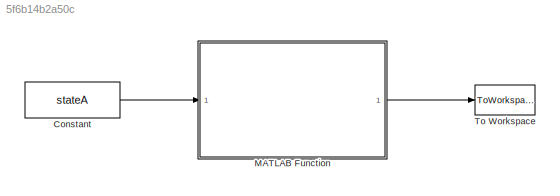
MODEL slx_5f6b14b2a50c
KIND model
BLOCK [Constant] Constant
  OutDataTypeStr = Bus: stateAbus
  Value = stateA
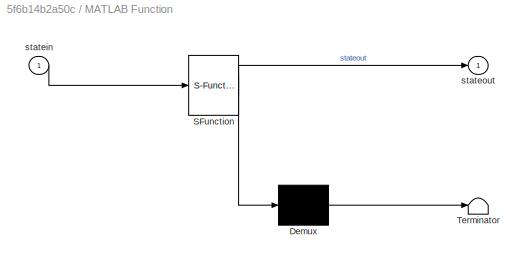
BLOCK [SubSystem] MATLAB Function
  ErrorFcn = Stateflow.Translate.translate
  PermitHierarchicalResolution = ExplicitOnly
  Ports = [1, 1]
  RequestExecContextInheritance = off
  SFBlockType = MATLAB Function
  TreatAsAtomicUnit = on
BLOCK [Demux] MATLAB Function/ Demux 
  Outputs = 1
  Ports = [1, 1]
BLOCK [S-Function] MATLAB Function/ SFunction 
  EnableBusSupport = on
  FunctionName = sf_sfun
  PortCounts = [1 2]
  Ports = [1, 2]
  Tag = Stateflow S-Function testupdate 2
BLOCK [Terminator] MATLAB Function/ Terminator 
BLOCK [Inport] MATLAB Function/statein
  IconDisplay = Port number
BLOCK [Outport] MATLAB Function/stateout
  IconDisplay = Port number
BLOCK [ToWorkspace] To Workspace
  FixptAsFi = on
  MaxDataPoints = inf
  Ports = [1]
  SampleTime = -1
  Save2DSignal = 3-D array (concatenate along third dimension)
  SaveFormat = Timeseries
  VariableName = stateB
LINE Constant:1 -> MATLAB Function:1
LINE MATLAB Function:1 -> To Workspace:1
CHART MATLAB Function states=1 transitions=1
  STATE_LABEL 'eML_blk_kernel()'
  STATE_LABEL 'SCRIPT:\nfunction stateout = UpdateState(statein)\n%#codegen\n\nstateout=statein;\nfluid=stateout.fluid;\n\n%Define Pressure and Specific Enthalpy\np=stateout.pressure;\nh=stateout.enthalpy./stateout.mass;\n\n%Interpolation\nstateout.temperature=interp2(fluid.P,fluid.H,fluid.TPH,p,h);\nstateout.density=interp2(fluid.P,fluid.H,fluid.DPH,p,h);\nstateout.quality=interp2(fluid.P,fluid.H,fluid.QPH,p,h);'
